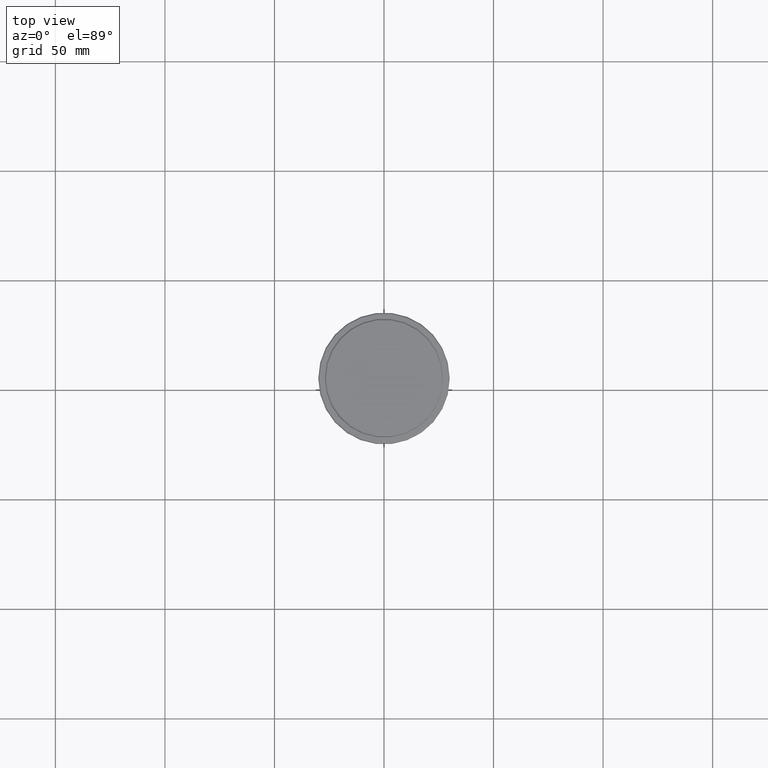
[diagram: clean part render]
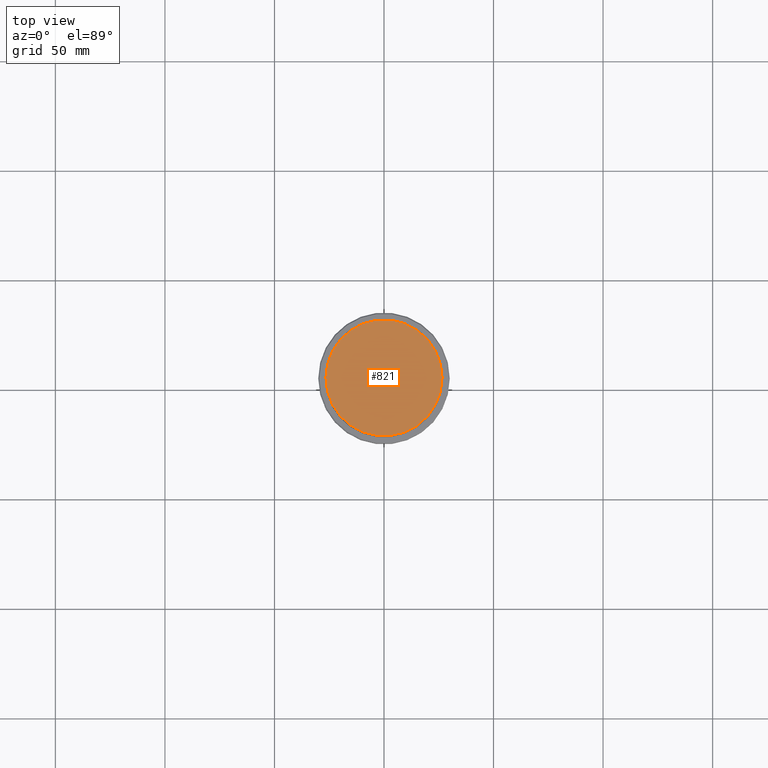
[diagram: same view with one face highlighted and labeled with its STEP entity id]
A machine part, top view. The second image highlights one B-rep face of the part: STEP entity #821.
In plain terms, the highlighted planar face has unit normal (0, -0, 1).
Its self-contained STEP definition (entity closure, byte-faithful):
#156 = AXIS2_PLACEMENT_3D ( 'NONE', #1074, #450, #455 ) ;
#232 = DIRECTION ( 'NONE',  ( -0.000000000000000000, -0.000000000000000000, 1.000000000000000000 ) ) ;
#332 = CARTESIAN_POINT ( 'NONE',  ( 0.000000000000000000, 0.000000000000000000, 0.000000000000000000 ) ) ;
#400 = CIRCLE ( 'NONE', #1210, 26.50000000000002487 ) ;
#450 = DIRECTION ( 'NONE',  ( 0.000000000000000000, -0.000000000000000000, 1.000000000000000000 ) ) ;
#455 = DIRECTION ( 'NONE',  ( 1.000000000000000000, 0.000000000000000000, 0.000000000000000000 ) ) ;
#596 = ORIENTED_EDGE ( 'NONE', *, *, #1134, .T. ) ;
#612 = CARTESIAN_POINT ( 'NONE',  ( 0.000000000000000000, 0.000000000000000000, 0.000000000000000000 ) ) ;
#634 = VERTEX_POINT ( 'NONE', #1094 ) ;
#643 = FACE_OUTER_BOUND ( 'NONE', #1025, .T. ) ;
#675 = DIRECTION ( 'NONE',  ( 1.000000000000000000, 0.000000000000000000, 0.000000000000000000 ) ) ;
#721 = DIRECTION ( 'NONE',  ( 1.000000000000000000, 0.000000000000000000, 0.000000000000000000 ) ) ;
#724 = EDGE_CURVE ( 'NONE', #634, #1170, #1235, .T. ) ;
#760 = PLANE ( 'NONE',  #156 ) ;
#821 = ADVANCED_FACE ( 'NONE', ( #643 ), #760, .T. ) ;
#895 = AXIS2_PLACEMENT_3D ( 'NONE', #332, #232, #675 ) ;
#1025 = EDGE_LOOP ( 'NONE', ( #596, #1159 ) ) ;
#1074 = CARTESIAN_POINT ( 'NONE',  ( 0.000000000000000000, 0.000000000000000000, 0.000000000000000000 ) ) ;
#1094 = CARTESIAN_POINT ( 'NONE',  ( 26.50000000000002487, 3.275930187719171130E-15, 0.000000000000000000 ) ) ;
#1134 = EDGE_CURVE ( 'NONE', #1170, #634, #400, .T. ) ;
#1159 = ORIENTED_EDGE ( 'NONE', *, *, #724, .T. ) ;
#1170 = VERTEX_POINT ( 'NONE', #1385 ) ;
#1210 = AXIS2_PLACEMENT_3D ( 'NONE', #612, #1272, #721 ) ;
#1235 = CIRCLE ( 'NONE', #895, 26.50000000000002487 ) ;
#1272 = DIRECTION ( 'NONE',  ( -0.000000000000000000, -0.000000000000000000, 1.000000000000000000 ) ) ;
#1385 = CARTESIAN_POINT ( 'NONE',  ( -26.50000000000002487, 0.000000000000000000, 0.000000000000000000 ) ) ;